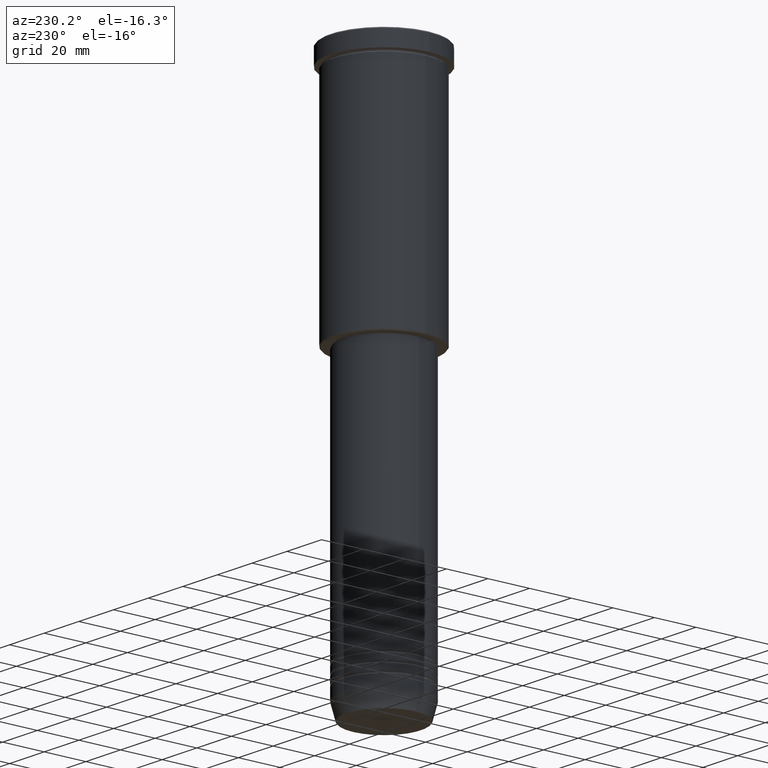
[diagram: clean part render]
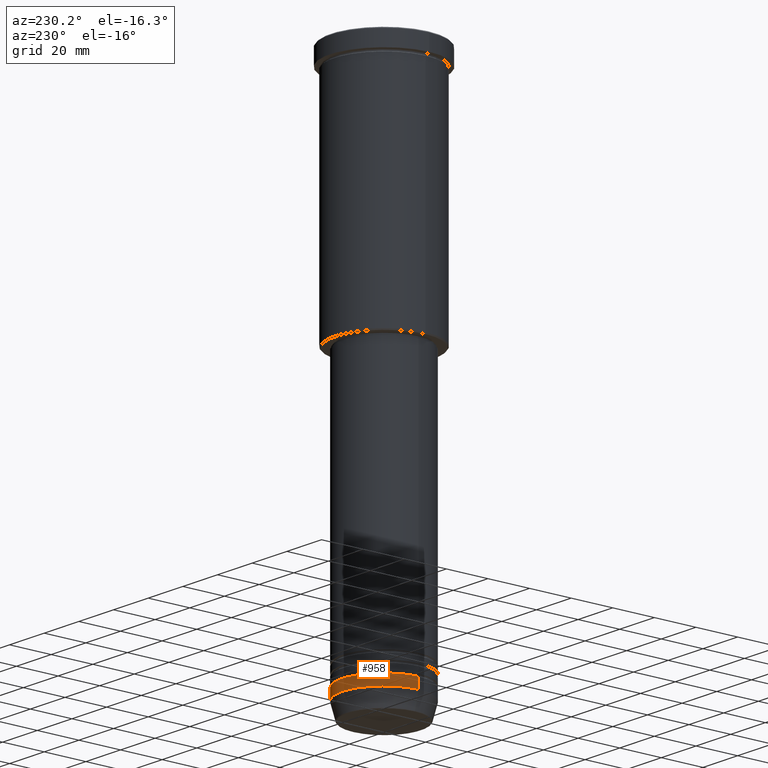
[diagram: same view with one face highlighted and labeled with its STEP entity id]
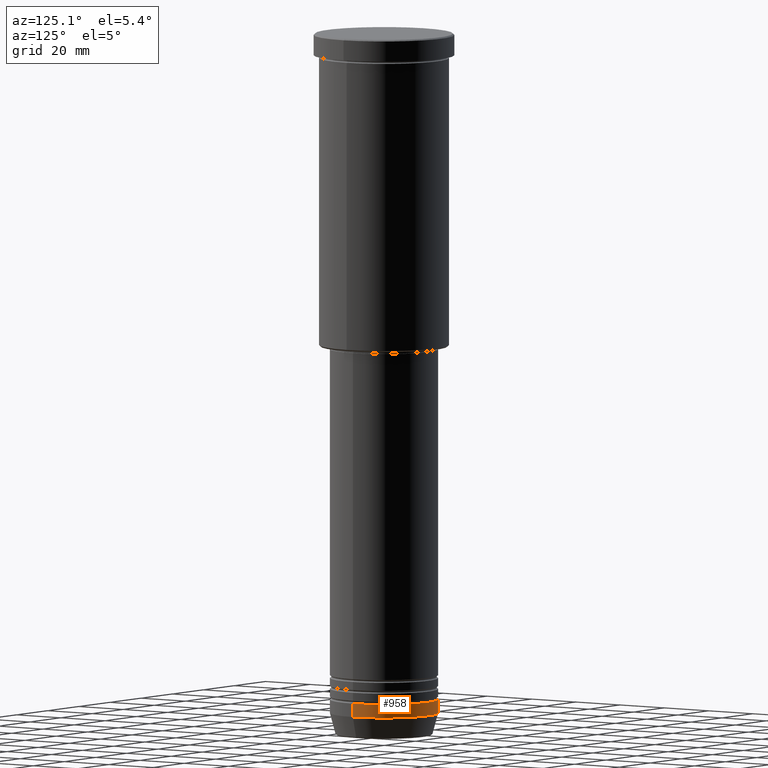
[diagram: same view with one face highlighted and labeled with its STEP entity id]
A machine part, auxiliary view. The second image highlights one B-rep face of the part: STEP entity #958.
A second angle (auxiliary view) of the same face is appended — the face is thin or edge-on in the first view.
In plain terms, the highlighted cylindrical surface (partial cylindrical patch) has radius 20 mm, axis along (-0, -0, 1).
Its self-contained STEP definition (entity closure, byte-faithful):
#19 = DIRECTION ( 'NONE',  ( 1.000000000000000000, 0.000000000000000000, 0.000000000000000000 ) ) ;
#88 = VERTEX_POINT ( 'NONE', #520 ) ;
#95 = CARTESIAN_POINT ( 'NONE',  ( 20.00000000000000355, 0.000000000000000000, 0.000000000000000000 ) ) ;
#96 = AXIS2_PLACEMENT_3D ( 'NONE', #639, #1009, #182 ) ;
#117 = VECTOR ( 'NONE', #385, 1000.000000000000000 ) ;
#122 = LINE ( 'NONE', #579, #493 ) ;
#142 = CARTESIAN_POINT ( 'NONE',  ( 0.000000000000000000, 0.000000000000000000, 0.000000000000000000 ) ) ;
#182 = DIRECTION ( 'NONE',  ( 1.000000000000000000, 0.000000000000000000, 0.000000000000000000 ) ) ;
#191 = DIRECTION ( 'NONE',  ( -0.000000000000000000, -0.000000000000000000, 1.000000000000000000 ) ) ;
#204 = EDGE_CURVE ( 'NONE', #88, #412, #588, .T. ) ;
#210 = AXIS2_PLACEMENT_3D ( 'NONE', #142, #875, #1064 ) ;
#226 = EDGE_CURVE ( 'NONE', #920, #426, #751, .T. ) ;
#230 = CARTESIAN_POINT ( 'NONE',  ( -20.00000000000000355, 2.449293598294706907E-15, -252.0000000000000000 ) ) ;
#277 = ORIENTED_EDGE ( 'NONE', *, *, #204, .T. ) ;
#281 = LINE ( 'NONE', #95, #117 ) ;
#310 = EDGE_CURVE ( 'NONE', #412, #426, #122, .T. ) ;
#337 = CYLINDRICAL_SURFACE ( 'NONE', #210, 20.00000000000000355 ) ;
#385 = DIRECTION ( 'NONE',  ( -0.000000000000000000, -0.000000000000000000, 1.000000000000000000 ) ) ;
#412 = VERTEX_POINT ( 'NONE', #230 ) ;
#426 = VERTEX_POINT ( 'NONE', #865 ) ;
#428 = FACE_OUTER_BOUND ( 'NONE', #534, .T. ) ;
#493 = VECTOR ( 'NONE', #1149, 1000.000000000000000 ) ;
#520 = CARTESIAN_POINT ( 'NONE',  ( 20.00000000000000355, 0.000000000000000000, -252.0000000000000000 ) ) ;
#534 = EDGE_LOOP ( 'NONE', ( #277, #742, #910, #700 ) ) ;
#579 = CARTESIAN_POINT ( 'NONE',  ( -20.00000000000000355, 2.449293598294706907E-15, 0.000000000000000000 ) ) ;
#588 = CIRCLE ( 'NONE', #626, 20.00000000000000355 ) ;
#594 = EDGE_CURVE ( 'NONE', #88, #920, #281, .T. ) ;
#626 = AXIS2_PLACEMENT_3D ( 'NONE', #647, #191, #19 ) ;
#639 = CARTESIAN_POINT ( 'NONE',  ( 0.000000000000000000, 0.000000000000000000, -247.0000000000000000 ) ) ;
#647 = CARTESIAN_POINT ( 'NONE',  ( 0.000000000000000000, 0.000000000000000000, -252.0000000000000000 ) ) ;
#655 = CARTESIAN_POINT ( 'NONE',  ( 20.00000000000000000, 0.000000000000000000, -247.0000000000000000 ) ) ;
#700 = ORIENTED_EDGE ( 'NONE', *, *, #594, .F. ) ;
#742 = ORIENTED_EDGE ( 'NONE', *, *, #310, .T. ) ;
#751 = CIRCLE ( 'NONE', #96, 20.00000000000000000 ) ;
#865 = CARTESIAN_POINT ( 'NONE',  ( -20.00000000000000000, 2.449293598294706513E-15, -247.0000000000000000 ) ) ;
#875 = DIRECTION ( 'NONE',  ( -0.000000000000000000, -0.000000000000000000, 1.000000000000000000 ) ) ;
#910 = ORIENTED_EDGE ( 'NONE', *, *, #226, .F. ) ;
#920 = VERTEX_POINT ( 'NONE', #655 ) ;
#958 = ADVANCED_FACE ( 'NONE', ( #428 ), #337, .T. ) ;
#1009 = DIRECTION ( 'NONE',  ( -0.000000000000000000, -0.000000000000000000, 1.000000000000000000 ) ) ;
#1064 = DIRECTION ( 'NONE',  ( 1.000000000000000000, 0.000000000000000000, 0.000000000000000000 ) ) ;
#1149 = DIRECTION ( 'NONE',  ( -0.000000000000000000, -0.000000000000000000, 1.000000000000000000 ) ) ;